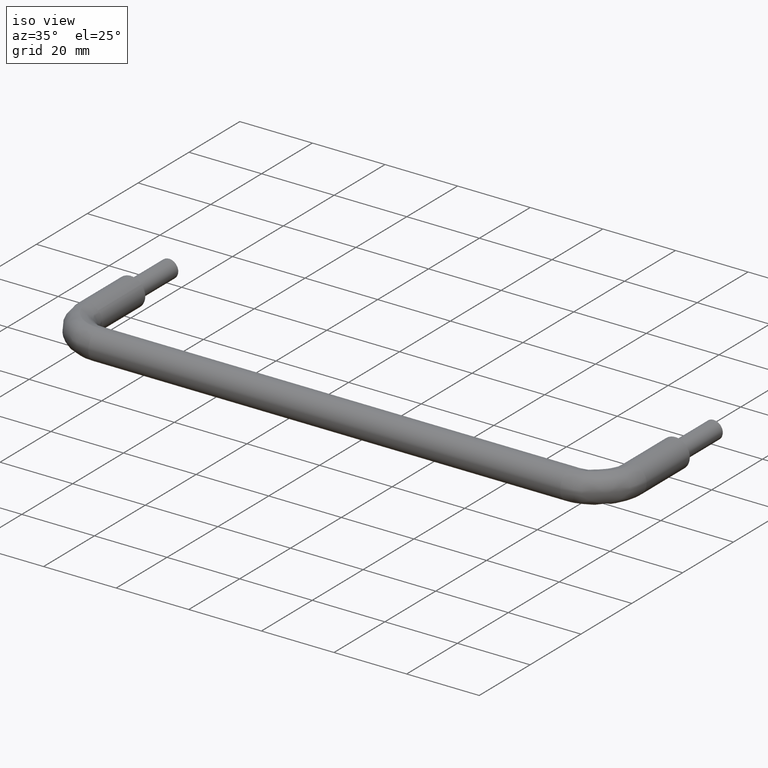
[diagram: clean part render]
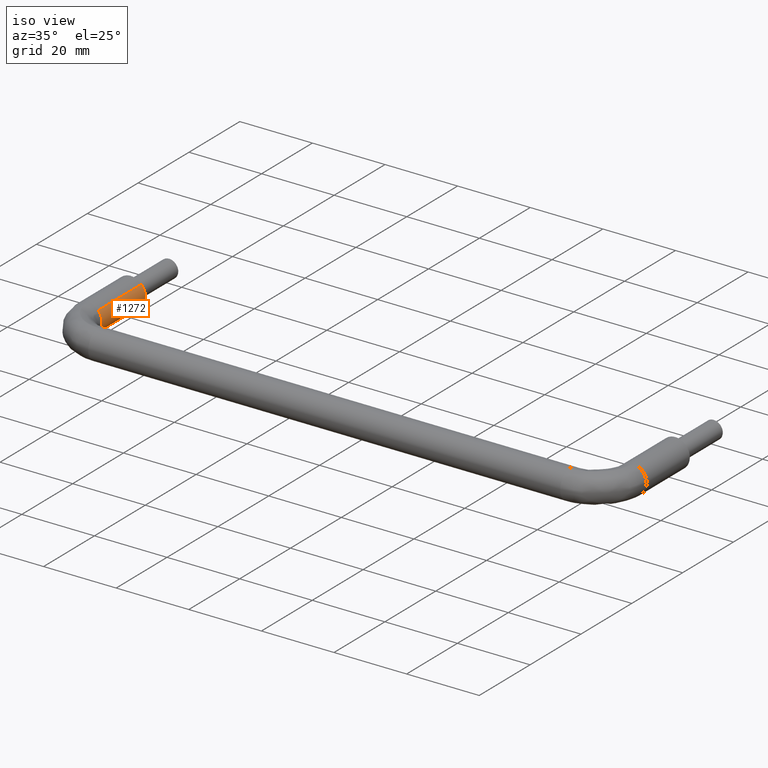
[diagram: same view with one face highlighted and labeled with its STEP entity id]
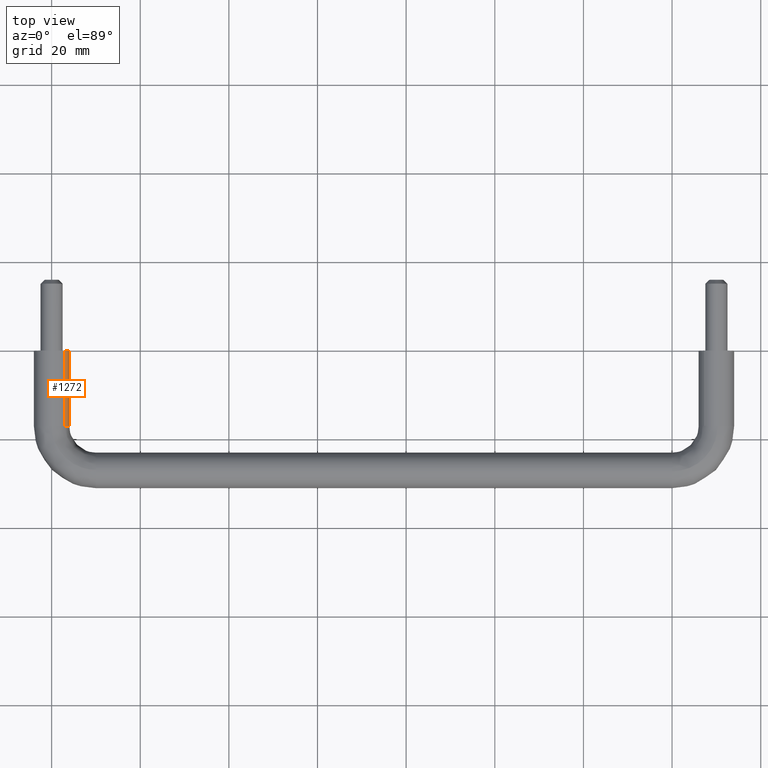
[diagram: same view with one face highlighted and labeled with its STEP entity id]
A machine part, iso view. The second image highlights one B-rep face of the part: STEP entity #1272.
A second angle (top view) of the same face is appended — the face is thin or edge-on in the first view.
In plain terms, the highlighted face is a freeform B-spline surface patch.
Its self-contained STEP definition (entity closure, byte-faithful):
#1174=CARTESIAN_POINT('',(1.905637401786337,0.425000000067290,-3.517075641449033));
#1175=CARTESIAN_POINT('',(1.921277778701217,0.425000000067290,-3.508419821064449));
#1176=CARTESIAN_POINT('',(2.352302438949466,0.425000000067290,-3.269878764110414));
#1177=CARTESIAN_POINT('',(2.702360830462641,0.425000000067290,-2.949109347240495));
#1178=CARTESIAN_POINT('',(5.651470177703135,0.425000000067291,-0.246748516777854));
#1179=CARTESIAN_POINT('',(2.938045701825943,0.425000000067290,2.714434680756355));
#1180=CARTESIAN_POINT('',(2.927019516742270,0.425000000067290,2.726467650272531));
#1181=CARTESIAN_POINT('',(1.905637401786339,-17.435625002760545,-3.517075641449033));
#1182=CARTESIAN_POINT('',(1.921277778701219,-17.435625002760542,-3.508419821064449));
#1183=CARTESIAN_POINT('',(2.352302438949469,-17.435625002760535,-3.269878764110414));
#1184=CARTESIAN_POINT('',(2.702360830462643,-17.435625002760538,-2.949109347240495));
#1185=CARTESIAN_POINT('',(5.651470177703138,-17.435625002760535,-0.246748516777854));
#1186=CARTESIAN_POINT('',(2.938045701825946,-17.435625002760531,2.714434680756355));
#1187=CARTESIAN_POINT('',(2.927019516742274,-17.435625002760538,2.726467650272531));
#1195=(BOUNDED_SURFACE()B_SPLINE_SURFACE(2,1,((#1174,#1181),(#1175,#1182),(#1176,#1183),(#1177,#1184),(#1178,#1185),(#1179,#1186),(#1180,#1187)),.UNSPECIFIED.,.F.,.F.,.U.)B_SPLINE_SURFACE_WITH_KNOTS((3,1,2,1,3),(2,2),(0.0,0.038442938808427,1.098829658483551,7.726246656453070,7.764683818591236),(0.0,17.860625002827831),.UNSPECIFIED.)GEOMETRIC_REPRESENTATION_ITEM()RATIONAL_B_SPLINE_SURFACE(((0.918959725451729,0.918959725451729),(0.920115014117336,0.920115014117336),(0.953137084989848,0.953137084989848),(1.0,1.0),(0.707106781186548,0.707106781186548),(1.001698698624842,1.001698698624842),(1.003397397249683,1.003397397249683)))REPRESENTATION_ITEM('')SURFACE());
#1196=CARTESIAN_POINT('',(1.936875758742529,-17.0,-3.499787464287286));
#1197=VERTEX_POINT('',#1196);
#1198=CARTESIAN_POINT('',(4.000000000000002,-17.0,0.0));
#1199=VERTEX_POINT('',#1198);
#1200=CARTESIAN_POINT('',(1.936875758742530,-16.999999999999993,-3.499787464287285));
#1201=CARTESIAN_POINT('',(4.000000000000002,-17.000000000000004,-2.357999464034285));
#1202=CARTESIAN_POINT('',(4.000000000000002,-17.0,0.0));
#1210=(BOUNDED_CURVE()B_SPLINE_CURVE(2,(#1200,#1201,#1202),.UNSPECIFIED.,.F.,.U.)B_SPLINE_CURVE_WITH_KNOTS((3,3),(0.332484149575816,0.500000000000000),.UNSPECIFIED.)CURVE()GEOMETRIC_REPRESENTATION_ITEM()RATIONAL_B_SPLINE_CURVE((0.870495248545805,0.803742973467952,1.0))REPRESENTATION_ITEM(''));
#1211=EDGE_CURVE('',#1197,#1199,#1210,.T.);
#1212=ORIENTED_EDGE('',*,*,#1211,.F.);
#1213=CARTESIAN_POINT('',(1.936878929040470,0.0,-3.499785709759819));
#1214=VERTEX_POINT('',#1213);
#1215=CARTESIAN_POINT('',(1.936878929040470,0.0,-3.499785709759819));
#1216=CARTESIAN_POINT('',(1.936875758742529,-17.0,-3.499787464287286));
#1217=QUASI_UNIFORM_CURVE('',1,(#1215,#1216),.UNSPECIFIED.,.F.,.U.);
#1218=EDGE_CURVE('',#1214,#1197,#1217,.T.);
#1219=ORIENTED_EDGE('',*,*,#1218,.F.);
#1220=CARTESIAN_POINT('',(4.0,0.0,0.0));
#1221=VERTEX_POINT('',#1220);
#1222=CARTESIAN_POINT('',(1.936878929040471,0.0,-3.499785709759819));
#1223=CARTESIAN_POINT('',(4.000000000000001,0.0,-2.357997022721315));
#1224=CARTESIAN_POINT('',(4.0,0.0,0.0));
#1232=(BOUNDED_CURVE()B_SPLINE_CURVE(2,(#1222,#1223,#1224),.UNSPECIFIED.,.F.,.U.)B_SPLINE_CURVE_WITH_KNOTS((3,3),(0.332484288972660,0.500000000000000),.UNSPECIFIED.)CURVE()GEOMETRIC_REPRESENTATION_ITEM()RATIONAL_B_SPLINE_CURVE((0.870495137451348,0.803743136781512,1.0))REPRESENTATION_ITEM(''));
#1233=EDGE_CURVE('',#1214,#1221,#1232,.T.);
#1234=ORIENTED_EDGE('',*,*,#1233,.T.);
#1235=CARTESIAN_POINT('',(2.949110740387567,5.551115E-017,2.702359310107826));
#1236=VERTEX_POINT('',#1235);
#1237=CARTESIAN_POINT('',(4.0,0.0,0.0));
#1238=CARTESIAN_POINT('',(4.000000000000001,0.0,1.555513740428500));
#1239=CARTESIAN_POINT('',(2.949110740387567,5.551115E-017,2.702359310107826));
#1247=(BOUNDED_CURVE()B_SPLINE_CURVE(2,(#1237,#1238,#1239),.UNSPECIFIED.,.F.,.U.)B_SPLINE_CURVE_WITH_KNOTS((3,3),(0.500000000000000,0.618415131259578),.UNSPECIFIED.)CURVE()GEOMETRIC_REPRESENTATION_ITEM()RATIONAL_B_SPLINE_CURVE((1.0,0.861268044196659,0.853959790444123))REPRESENTATION_ITEM(''));
#1248=EDGE_CURVE('',#1221,#1236,#1247,.T.);
#1249=ORIENTED_EDGE('',*,*,#1248,.T.);
#1250=CARTESIAN_POINT('',(2.949110422968060,-17.000000000488470,2.702359656111148));
#1251=VERTEX_POINT('',#1250);
#1252=CARTESIAN_POINT('',(2.949110740387567,5.551115E-017,2.702359310107826));
#1253=CARTESIAN_POINT('',(2.949110422968060,-17.000000000488470,2.702359656111148));
#1254=QUASI_UNIFORM_CURVE('',1,(#1252,#1253),.UNSPECIFIED.,.F.,.U.);
#1255=EDGE_CURVE('',#1236,#1251,#1254,.T.);
#1256=ORIENTED_EDGE('',*,*,#1255,.T.);
#1257=CARTESIAN_POINT('',(4.000000000000002,-17.0,0.0));
#1258=CARTESIAN_POINT('',(4.000000000000001,-17.000000000000007,1.555514010413053));
#1259=CARTESIAN_POINT('',(2.949110422968061,-17.000000000488473,2.702359656111148));
#1267=(BOUNDED_CURVE()B_SPLINE_CURVE(2,(#1257,#1258,#1259),.UNSPECIFIED.,.F.,.U.)B_SPLINE_CURVE_WITH_KNOTS((3,3),(0.500000000000000,0.618415148961099),.UNSPECIFIED.)CURVE()GEOMETRIC_REPRESENTATION_ITEM()RATIONAL_B_SPLINE_CURVE((1.0,0.861268023458037,0.853959788259148))REPRESENTATION_ITEM(''));
#1268=EDGE_CURVE('',#1199,#1251,#1267,.T.);
#1269=ORIENTED_EDGE('',*,*,#1268,.F.);
#1270=EDGE_LOOP('',(#1212,#1219,#1234,#1249,#1256,#1269));
#1271=FACE_OUTER_BOUND('',#1270,.T.);
#1272=ADVANCED_FACE('',(#1271),#1195,.T.);